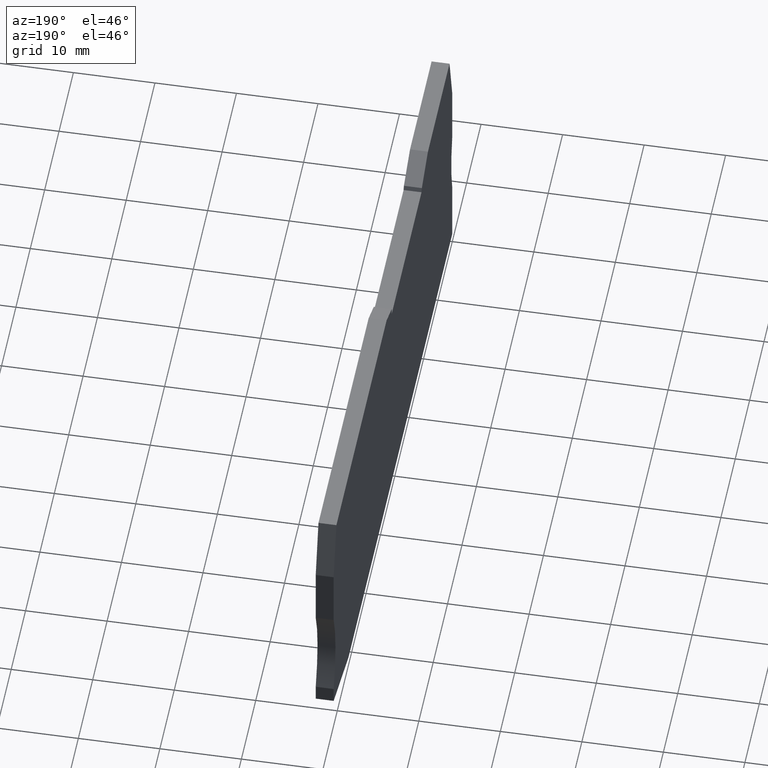
[diagram: clean part render]
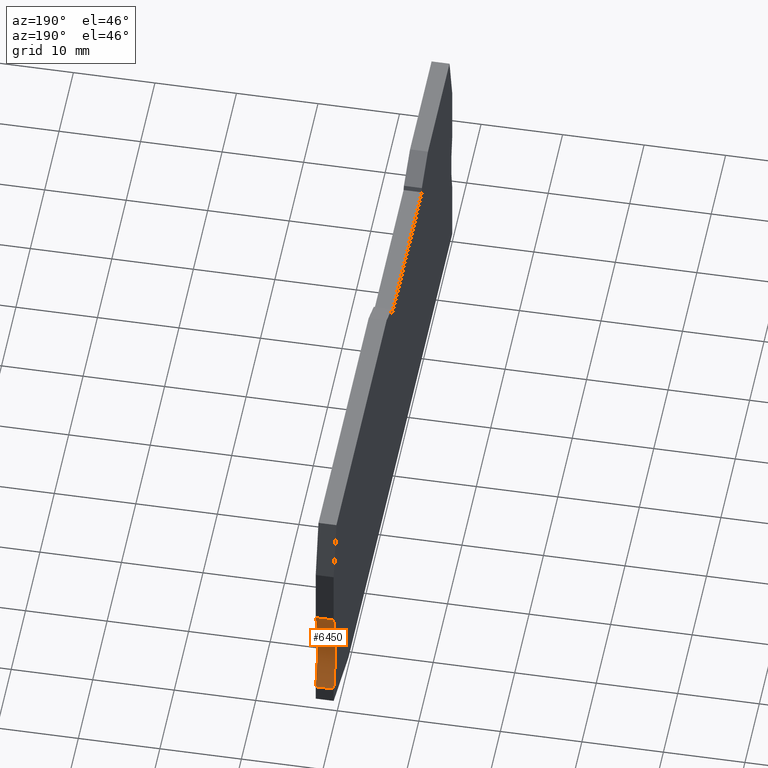
[diagram: same view with one face highlighted and labeled with its STEP entity id]
A machine part, auxiliary view. The second image highlights one B-rep face of the part: STEP entity #6450.
In plain terms, the highlighted cylindrical surface (partial cylindrical patch) has radius 15 mm, axis along (1, 0, 0).
Its self-contained STEP definition (entity closure, byte-faithful):
#280=CARTESIAN_POINT('',(91.2296808273924,-33.2000000030743,
-2.22044604925031E-14));
#290=VERTEX_POINT('',#280);
#320=CARTESIAN_POINT('',(104.977407910921,-27.2000000000058,
-2.22044604925031E-14));
#330=DIRECTION('',(0.,0.,1.));
#340=DIRECTION('',(1.,0.,0.));
#350=AXIS2_PLACEMENT_3D('',#320,#330,#340);
#360=CIRCLE('',#350,15.);
#370=CARTESIAN_POINT('',(91.2296808260532,-21.2000000000058,
-2.22044604925031E-14));
#380=VERTEX_POINT('',#370);
#390=EDGE_CURVE('',#380,#290,#360,.T.);
#2620=CARTESIAN_POINT('',(91.2296808260532,-21.2000000000058,
2.19999999999998));
#2630=VERTEX_POINT('',#2620);
#2660=CARTESIAN_POINT('',(104.977407910921,-27.2000000000058,
2.19999999999998));
#2670=DIRECTION('',(0.,0.,1.));
#2680=DIRECTION('',(1.,0.,0.));
#2690=AXIS2_PLACEMENT_3D('',#2660,#2670,#2680);
#2700=CIRCLE('',#2690,15.);
#2710=CARTESIAN_POINT('',(91.2296808273924,-33.2000000030743,
2.19999999999998));
#2720=VERTEX_POINT('',#2710);
#2730=EDGE_CURVE('',#2630,#2720,#2700,.T.);
#5890=CARTESIAN_POINT('',(91.2296808260532,-21.2000000000058,
2.19999999999998));
#5900=DIRECTION('',(0.,0.,1.));
#5910=VECTOR('',#5900,1.);
#5920=LINE('',#5890,#5910);
#5930=EDGE_CURVE('',#380,#2630,#5920,.T.);
#6290=CARTESIAN_POINT('',(104.977407910921,-27.2000000000058,
2.19999999999998));
#6300=DIRECTION('',(0.,0.,1.));
#6310=DIRECTION('',(1.,0.,0.));
#6320=AXIS2_PLACEMENT_3D('',#6290,#6300,#6310);
#6330=CYLINDRICAL_SURFACE('',#6320,15.);
#6340=ORIENTED_EDGE('',*,*,#5930,.T.);
#6350=ORIENTED_EDGE('',*,*,#390,.F.);
#6360=CARTESIAN_POINT('',(91.2296808273924,-33.2000000030743,
2.19999999999998));
#6370=DIRECTION('',(0.,0.,1.));
#6380=VECTOR('',#6370,1.);
#6390=LINE('',#6360,#6380);
#6400=EDGE_CURVE('',#290,#2720,#6390,.T.);
#6410=ORIENTED_EDGE('',*,*,#6400,.F.);
#6420=ORIENTED_EDGE('',*,*,#2730,.T.);
#6430=EDGE_LOOP('',(#6420,#6410,#6350,#6340));
#6440=FACE_OUTER_BOUND('',#6430,.T.);
#6450=ADVANCED_FACE('',(#6440),#6330,.F.);